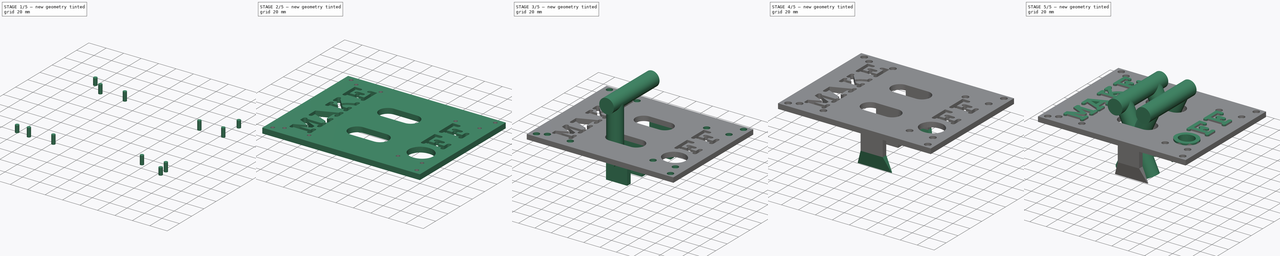
[diagram: build sequence overview — one tinted view per stage of 5, left to right]
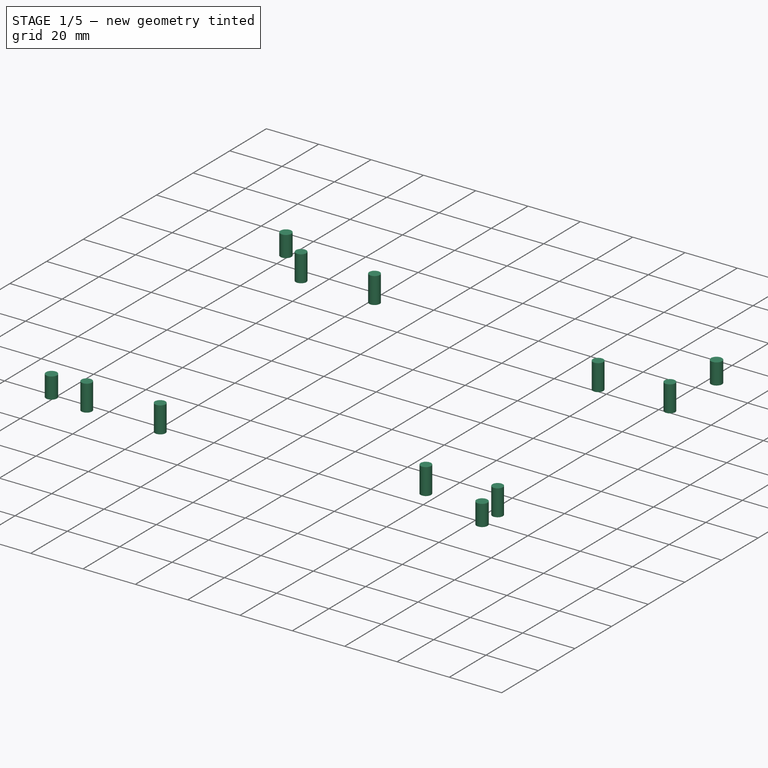
[diagram: stage 1 of 5 — iso view after this stage's code; geometry added in this stage tinted green]
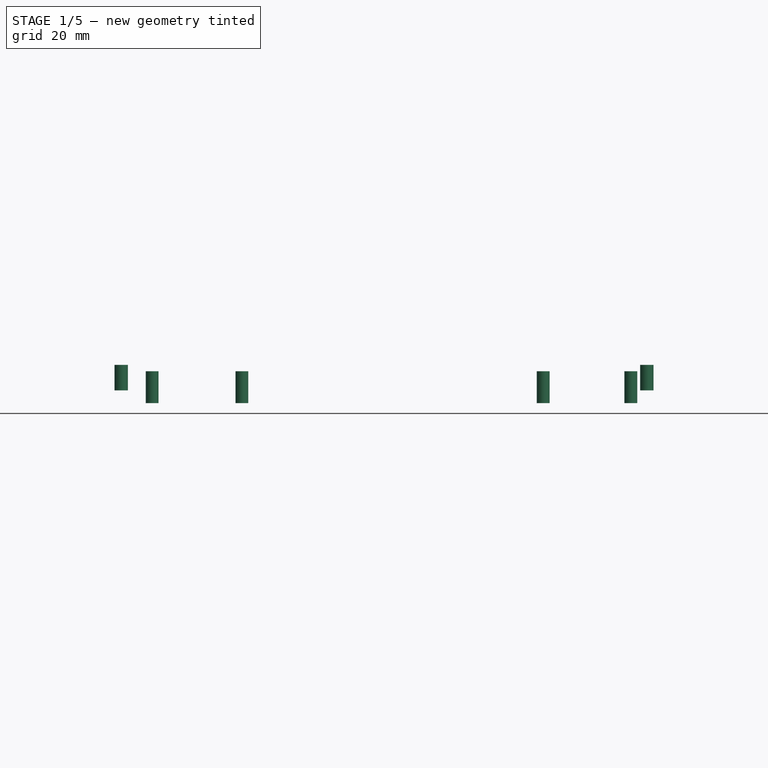
[diagram: stage 1 of 5 — front view after this stage's code; geometry added in this stage tinted green]
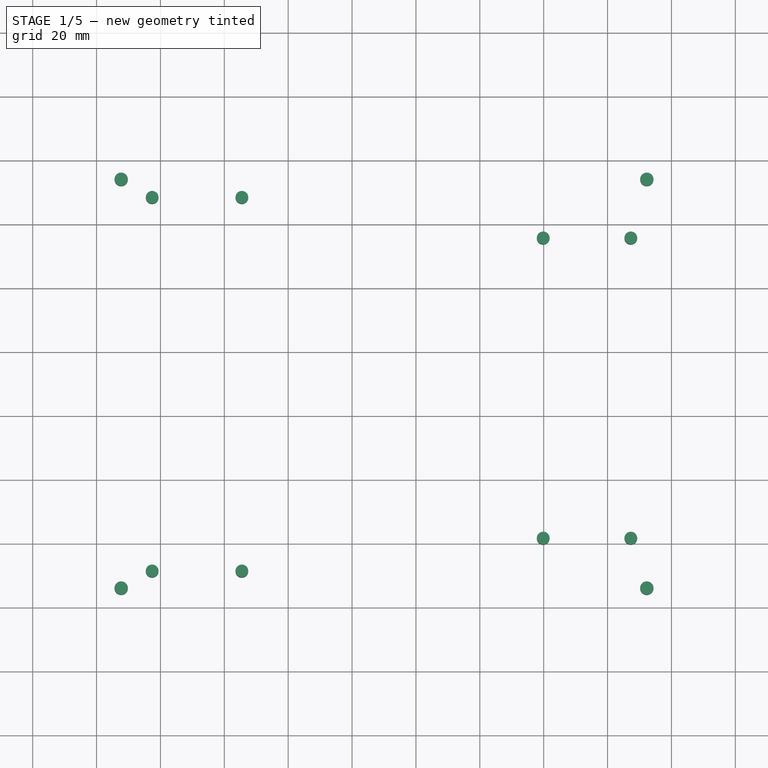
[diagram: stage 1 of 5 — top view after this stage's code; geometry added in this stage tinted green]
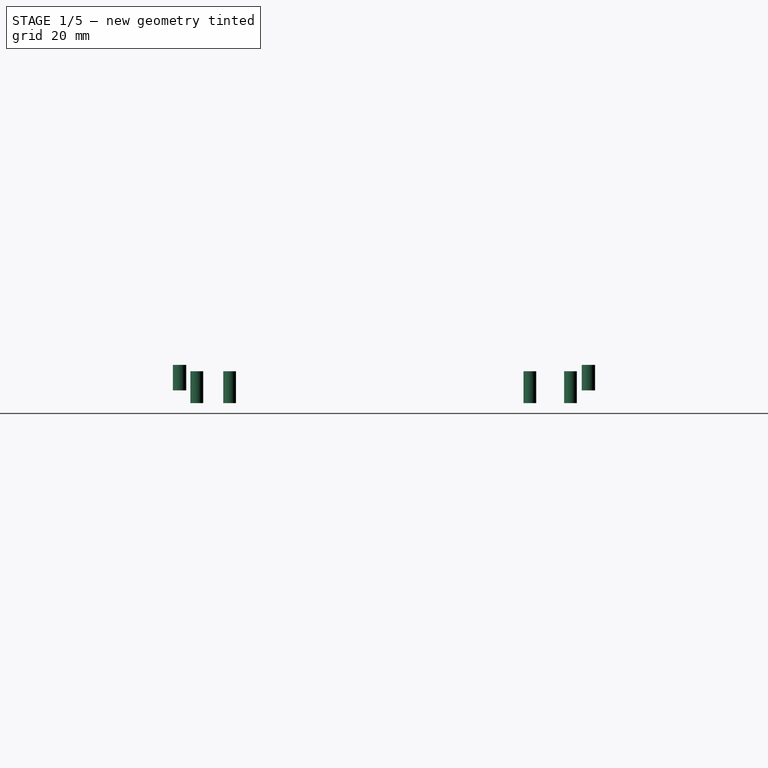
[diagram: stage 1 of 5 — right view after this stage's code; geometry added in this stage tinted green]
FCSTD DOCUMENT  (FreeCAD 0.16R4928 (Git))
Label: MakeSwitch
License: All rights reserved
LicenseURL: http://es.wikipedia.org/wiki/Todos_los_derechos_reservados
objects: Sketcher::SketchObject×10, Part::FeaturePython×8, Part::Feature×8, App::DocumentObjectGroup×6, Part::Extrusion×5, Part::Cut×5, Part::MultiFuse×5, PartDesign::Pad×3, PartDesign::Pocket×3, Part::Cylinder×3, Part::Part2DObjectPython×2, Part::Box×1, Part::Loft×1, Part::Mirroring×1, PartDesign::Chamfer×1
note: 62 computed .brp shape members not serialized (recipe doc carries the construction recipe); baked Part::Feature solids carry a one-line shape summary decoded from their .brp

FEATURE [Part::Box] Box  label="Base"
  Height = 6
  Length = 180
  Width = 140
FEATURE [Sketcher::SketchObject] Sketch
  ExternalGeometry = -> [Box]
  Placement = pos=(0,0,6) rot=(0,0,1;0rad)
  Support = -> Box [Face6]
  sketch-geometry (13):
    g0: LineSegment StartX=180 StartY=140 StartZ=0 EndX=0 EndY=140 EndZ=0
    g1: LineSegment StartX=0 StartY=140 StartZ=0 EndX=0 EndY=0 EndZ=0
    g2: LineSegment StartX=0 StartY=0 StartZ=0 EndX=180 EndY=0 EndZ=0
    g3: LineSegment StartX=180 StartY=0 StartZ=0 EndX=180 EndY=140 EndZ=0
    g4: LineSegment StartX=166.929 StartY=134 StartZ=0 EndX=13.0711 EndY=134 EndZ=0
    g5: LineSegment StartX=13.0711 StartY=134 StartZ=0 EndX=6 EndY=126.929 EndZ=0
    g6: LineSegment StartX=6 StartY=126.929 StartZ=0 EndX=6 EndY=13.0711 EndZ=0
    g7: LineSegment StartX=6 StartY=13.0711 StartZ=0 EndX=13.0711 EndY=6 EndZ=0
    g8: LineSegment StartX=13.0711 StartY=6 StartZ=0 EndX=166.929 EndY=6 EndZ=0
    g9: LineSegment StartX=166.929 StartY=6 StartZ=0 EndX=174 EndY=13.0711 EndZ=0
    g10: LineSegment StartX=174 StartY=13.0711 StartZ=0 EndX=174 EndY=126.929 EndZ=0
    g11: LineSegment StartX=174 StartY=126.929 StartZ=0 EndX=166.929 EndY=134 EndZ=0
    g12: LineSegment [constr] StartX=166.929 StartY=134 StartZ=0 EndX=166.929 EndY=6 EndZ=0
  constraints (36):
    c: Coincident(g0,g1)
    c: Coincident(g1,g2)
    c: Coincident(g2,g3)
    c: Coincident(g3,g0)
    c: Horizontal(g0)
    c: Horizontal(g2)
    c: Vertical(g1)
    c: Vertical(g3)
    c: Coincident(g0,g-6)
    c: Coincident(g1,g-1)
    c: Horizontal(g4)
    c: Coincident(g4,g5)
    c: Coincident(g5,g6)
    c: Vertical(g6)
    c: Coincident(g6,g7)
    c: Coincident(g7,g8)
    c: Horizontal(g8)
    c: Coincident(g8,g9)
    c: Coincident(g9,g10)
    c: Vertical(g10)
    c: Coincident(g10,g11)
    c: Coincident(g11,g4)
    c: Parallel(g7,g11)
    c: Parallel(g9,g5)
    c: Perpendicular(g11,g9)
    c: Coincident(g12,g4)
    c: Coincident(g12,g8)
    c: Vertical(g12)
    c: Equal(g9,g11)
    c: Equal(g11,g7)
    c: Equal(g7,g5)
    c: DistanceX(g9,g2) = 6
    c: DistanceY(g8,g2) = -6
    c: DistanceX(g5,g0) = -6
    c: DistanceY(g0,g4) = -6
    c: Distance(g11) = 10
FEATURE [PartDesign::Pad] Pad
  Length = 60
  Length2 = 100
  Sketch = -> Sketch
  Type = 0
FEATURE [App::DocumentObjectGroup] Grupo005  label="Latch"
  Group = -> [Chamfer,Fusion002]
FEATURE [Part::Cylinder] Cylinder002  label="Cilindro002"
  Angle = 360
  Height = 10
  Placement = pos=(17.412,11.393,56) rot=(0,0,1;0rad)
  Radius = 2
FEATURE [Part::Feature] Cylinder003  label="Cilindro003"
  Placement = pos=(17.412,128.393,56) rot=(0,0,1;0rad)
  shape: bbox 4 x 4 x 10 mm, 3 faces (baked)
FEATURE [Part::Feature] Cylinder004  label="Cilindro004"
  Placement = pos=(45.5,11.393,56) rot=(0,0,1;0rad)
  shape: bbox 4 x 4 x 10 mm, 3 faces (baked)
FEATURE [Part::Feature] Cylinder005  label="Cilindro005"
  Placement = pos=(45.5,128.393,56) rot=(0,0,1;0rad)
  shape: bbox 4 x 4 x 10 mm, 3 faces (baked)
FEATURE [Part::Feature] Cylinder006  label="Cilindro006"
  Placement = pos=(139.843,115.683,56) rot=(0,0,1;0rad)
  shape: bbox 4 x 4 x 10 mm, 3 faces (baked)
FEATURE [Part::Feature] Cylinder007  label="Cilindro007"
  Placement = pos=(167.278,115.683,56) rot=(0,0,1;0rad)
  shape: bbox 4 x 4 x 10 mm, 3 faces (baked)
FEATURE [Part::Feature] Cylinder008  label="Cilindro008"
  Placement = pos=(167.278,21.6825,56) rot=(0,0,1;0rad)
  shape: bbox 4 x 4 x 10 mm, 3 faces (baked)
FEATURE [Part::Feature] Cylinder009  label="Cilindro009"
  Placement = pos=(139.843,21.6825,56) rot=(0,0,1;0rad)
  shape: bbox 4 x 4 x 10 mm, 3 faces (baked)
FEATURE [Part::MultiFuse] Fusion003
  Placement = pos=(0,0,6) rot=(0,0,1;0rad)
  Shapes = -> [Cylinder002,Cylinder003,Cylinder008,Cylinder007,Cylinder006,Cylinder004,Cylinder009,Cylinder005]
FEATURE [Sketcher::SketchObject] Sketch007
  ExternalGeometry = -> [Pad]
  Placement = pos=(0,0,66) rot=(0,0,1;0rad)
  Support = -> Pad [Face1]
  sketch-geometry (10):
    g0: LineSegment [constr] StartX=7.71429 StartY=134 StartZ=0 EndX=172.286 EndY=134 EndZ=0
    g1: LineSegment [constr] StartX=172.286 StartY=134 StartZ=0 EndX=172.286 EndY=6 EndZ=0
    g2: LineSegment [constr] StartX=172.286 StartY=6 StartZ=0 EndX=7.71429 EndY=6 EndZ=0
    g3: LineSegment [constr] StartX=7.71429 StartY=6 StartZ=0 EndX=7.71429 EndY=134 EndZ=0
    g4: LineSegment [constr] StartX=180 StartY=140 StartZ=0 EndX=0 EndY=0 EndZ=0
    g5: Circle CenterX=172.286 CenterY=6 CenterZ=0 NormalX=0 NormalY=0 NormalZ=1 Radius=2.1
    g6: Circle CenterX=172.286 CenterY=134 CenterZ=0 NormalX=0 NormalY=0 NormalZ=1 Radius=2.1
    g7: Circle CenterX=7.71429 CenterY=134 CenterZ=0 NormalX=0 NormalY=0 NormalZ=1 Radius=2.1
    g8: LineSegment [constr] StartX=0 StartY=140 StartZ=0 EndX=180 EndY=0 EndZ=0
    g9: Circle CenterX=7.71429 CenterY=6 CenterZ=0 NormalX=0 NormalY=0 NormalZ=1 Radius=2.1
  constraints (24):
    c: Coincident(g0,g1)
    c: Coincident(g1,g2)
    c: Coincident(g2,g3)
    c: Coincident(g3,g0)
    c: Horizontal(g0)
    c: Horizontal(g2)
    c: Vertical(g1)
    c: Vertical(g3)
    c: Coincident(g4,g-5)
    c: Coincident(g4,g-1)
    c: PointOnObject(g2,g4)
    c: PointOnObject(g0,g4)
    c: Coincident(g5,g1)
    c: Coincident(g6,g0)
    c: Coincident(g7,g0)
    c: Coincident(g8,g-6)
    c: Coincident(g8,g-4)
    c: PointOnObject(g1,g8)
    c: Coincident(g9,g2)
    c: Radius(g6) = 2.1
    c: Equal(g6,g5)
    c: Equal(g6,g7)
    c: Equal(g6,g9)
    c: PointOnObject(g-8,g2)
FEATURE [PartDesign::Pocket] Pocket001
  Length = 35
  Sketch = -> Sketch007
  Type = 0
FEATURE [Sketcher::SketchObject] Sketch008
  ExternalGeometry = -> [Pocket001]
  Placement = pos=(0,0,66) rot=(0,0,1;0rad)
  Support = -> Pocket001 [Face1]
  sketch-geometry (4):
    g0: Circle CenterX=7.71429 CenterY=134 CenterZ=0 NormalX=0 NormalY=0 NormalZ=1 Radius=2.1
    g1: Circle CenterX=172.286 CenterY=134 CenterZ=0 NormalX=0 NormalY=0 NormalZ=1 Radius=2.1
    g2: Circle CenterX=172.286 CenterY=6 CenterZ=0 NormalX=0 NormalY=0 NormalZ=1 Radius=2.1
    g3: Circle CenterX=7.71429 CenterY=6 CenterZ=0 NormalX=0 NormalY=0 NormalZ=1 Radius=2.1
  constraints (8):
    c: Coincident(g0,g-3)
    c: Coincident(g1,g-4)
    c: Coincident(g2,g-5)
    c: Coincident(g3,g-6)
    c: Equal(g3,g0)
    c: Equal(g0,g1)
    c: Equal(g1,g2)
    c: Equal(g2,g-5)
FEATURE [App::DocumentObjectGroup] Grupo  label="Caja"
  Group = -> [Box,Pad,Grupo005,Pocket001,Sketch008]
FEATURE [Part::Extrusion] Extrude_Sketch008  label="Sketch008_Extrude"
  Base = -> Sketch008
  Dir = (0,0,8)
  Solid = true
FEATURE [Part::MultiFuse] Fusion004
  Shapes = -> [Fusion003,Extrude_Sketch008]
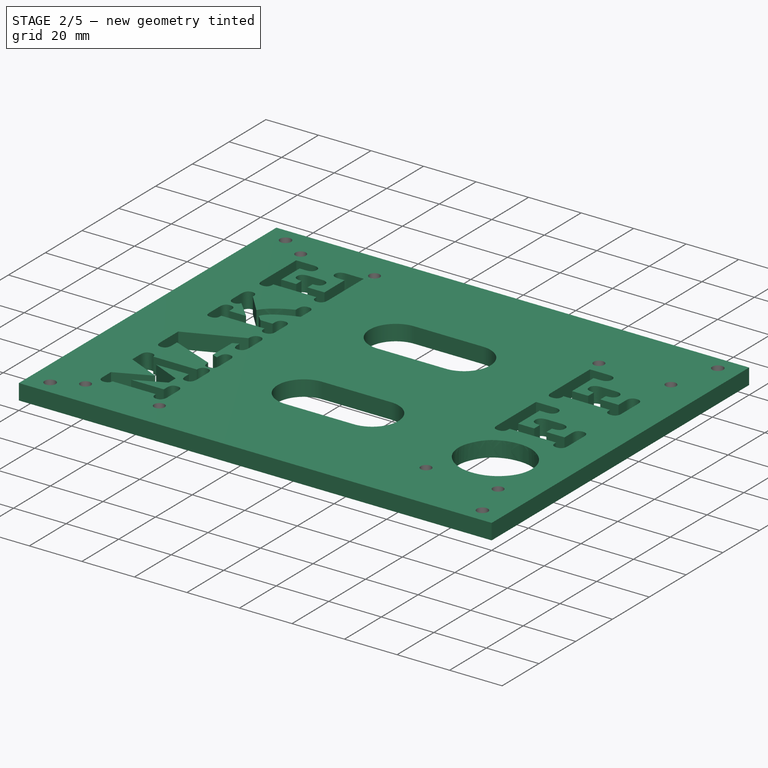
[diagram: stage 2 of 5 — iso view after this stage's code; geometry added in this stage tinted green]
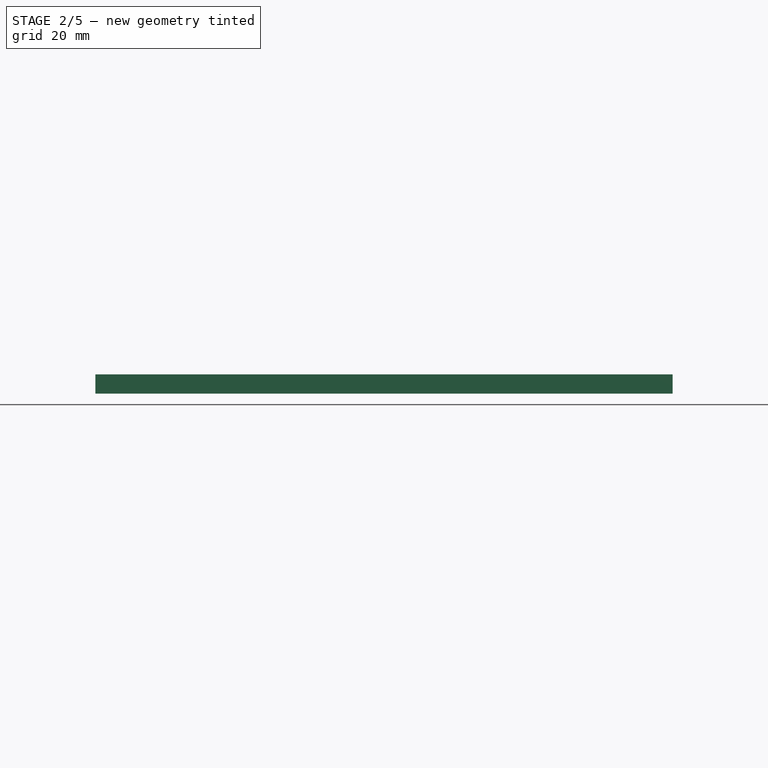
[diagram: stage 2 of 5 — front view after this stage's code; geometry added in this stage tinted green]
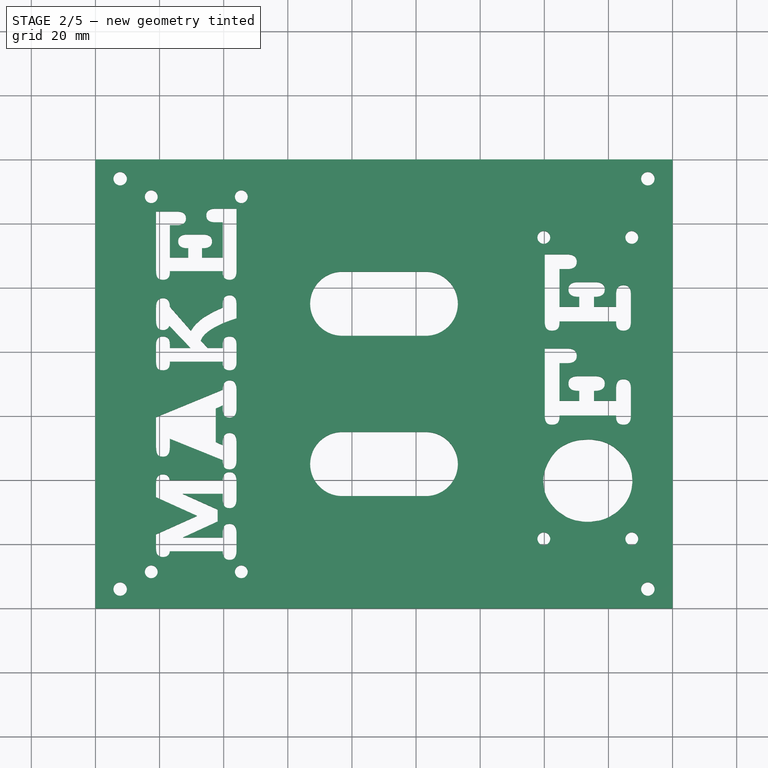
[diagram: stage 2 of 5 — top view after this stage's code; geometry added in this stage tinted green]
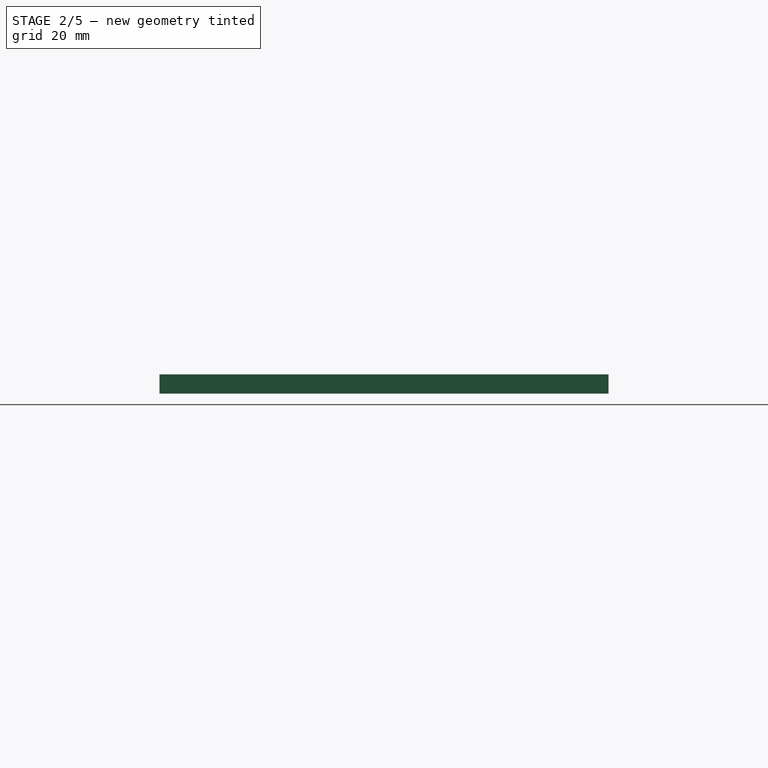
[diagram: stage 2 of 5 — right view after this stage's code; geometry added in this stage tinted green]
FEATURE [Part::FeaturePython] Clone  label="Clone of Base"  # Draft clone (typed FeaturePython)
  Objects = -> [Box]
  Placement = pos=(0,0,66) rot=(0,0,1;0rad)
  Scale = (1,1,1)
FEATURE [Part::Part2DObjectPython] ShapeString  # Draft 2D object (typed FeaturePython)
  FontFile = <path>
  Placement = pos=(44,16,72) rot=(0,0,1;1.5708rad)
  Size = 14
  String = MAKE
  Support = -> Clone
  Tracking = 160
FEATURE [Part::Part2DObjectPython] ShapeString001  label="String"  # Draft 2D object (typed FeaturePython)
  FontFile = <path>
  Placement = pos=(167,26,72) rot=(0,0,1;1.5708rad)
  Size = 15
  String = OFF
  Support = -> Clone
  Tracking = 100
FEATURE [Part::Extrusion] Extrude_ShapeString  label="Make"
  Base = -> ShapeString
  Dir = (0,0,-8)
  Solid = true
FEATURE [Part::Extrusion] Extrude_ShapeString001  label="Off"
  Base = -> ShapeString001
  Dir = (0,0,-8)
  Solid = true
FEATURE [Part::Cut] Cut
  Base = -> Clone
  Tool = -> Extrude_ShapeString
FEATURE [Part::Cut] Cut001
  Base = -> Cut
  Tool = -> Extrude_ShapeString001
FEATURE [App::DocumentObjectGroup] Grupo003  label="off"
  Group = -> [Pad001,Clone002]
FEATURE [Sketcher::SketchObject] Sketch003
  ExternalGeometry = -> [Cut001]
  Placement = pos=(0,0,72) rot=(0,0,1;0rad)
  Support = -> Cut001 [Face3]
  sketch-geometry (16):
    g0: ArcOfCircle CenterX=76.9683 CenterY=95 CenterZ=0 NormalX=0 NormalY=0 NormalZ=1 Radius=10 StartAngle=1.5708 EndAngle=4.71239
    g1: ArcOfCircle CenterX=103.032 CenterY=95 CenterZ=0 NormalX=0 NormalY=0 NormalZ=1 Radius=10 StartAngle=4.71239 EndAngle=7.85398
    g2: LineSegment StartX=76.9683 StartY=85 StartZ=0 EndX=103.032 EndY=85 EndZ=0
    g3: LineSegment StartX=76.9683 StartY=105 StartZ=0 EndX=103.032 EndY=105 EndZ=0
    g4: ArcOfCircle CenterX=76.9683 CenterY=45 CenterZ=0 NormalX=0 NormalY=0 NormalZ=1 Radius=10 StartAngle=1.5708 EndAngle=4.71239
    g5: ArcOfCircle CenterX=103.032 CenterY=45 CenterZ=0 NormalX=0 NormalY=0 NormalZ=1 Radius=10 StartAngle=4.71239 EndAngle=7.85398
    g6: LineSegment StartX=76.9683 StartY=35 StartZ=0 EndX=103.032 EndY=35 EndZ=0
    g7: LineSegment StartX=76.9683 StartY=55 StartZ=0 EndX=103.032 EndY=55 EndZ=0
    g8: LineSegment [constr] StartX=76.9683 StartY=85 StartZ=0 EndX=76.9683 EndY=55 EndZ=0
    g9: LineSegment [constr] StartX=103.032 StartY=85 StartZ=0 EndX=103.032 EndY=55 EndZ=0
    g10: LineSegment [constr] StartX=76.9683 StartY=105 StartZ=0 EndX=76.9683 EndY=85 EndZ=0
    g11: LineSegment [constr] StartX=76.9683 StartY=55 StartZ=0 EndX=76.9683 EndY=35 EndZ=0
    g12: LineSegment [constr] StartX=103.032 StartY=105 StartZ=0 EndX=103.032 EndY=140 EndZ=0
    g13: LineSegment [constr] StartX=103.032 StartY=35 StartZ=0 EndX=103.032 EndY=0 EndZ=0
    g14: LineSegment [constr] StartX=76.9683 StartY=95 StartZ=0 EndX=0 EndY=95 EndZ=0
    g15: LineSegment [constr] StartX=103.032 StartY=95 StartZ=0 EndX=180 EndY=95 EndZ=0
  constraints (39):
    c: Tangent(g0,g3) = 1.5708
    c: Tangent(g0,g2) = -1.5708
    c: Tangent(g2,g1) = -1.5708
    c: Tangent(g3,g1) = 1.5708
    c: Horizontal(g2)
    c: Equal(g0,g1)
    c: Tangent(g4,g7) = 1.5708
    c: Tangent(g4,g6) = -1.5708
    c: Tangent(g6,g5) = -1.5708
    c: Tangent(g7,g5) = 1.5708
    c: Horizontal(g6)
    c: Equal(g4,g5)
    c: Coincident(g8,g0)
    c: Coincident(g8,g4)
    c: Coincident(g9,g1)
    c: Coincident(g9,g5)
    c: Vertical(g9)
    c: Vertical(g8)
    c: Coincident(g10,g0)
    c: Coincident(g10,g0)
    c: Coincident(g11,g4)
    c: Coincident(g11,g4)
    c: Equal(g10,g11)
    c: Coincident(g12,g1)
    c: PointOnObject(g12,g-4)
    c: Vertical(g12)
    c: Coincident(g13,g5)
    c: PointOnObject(g13,g-3)
    c: Vertical(g13)
    c: Equal(g12,g13)
    c: Radius(g1) = 10
    c: Coincident(g14,g0)
    c: PointOnObject(g14,g-5)
    c: Horizontal(g14)
    c: Coincident(g15,g1)
    c: PointOnObject(g15,g-6)
    c: Horizontal(g15)
    c: Equal(g14,g15)
    c: Distance(g12) = 35
FEATURE [PartDesign::Pocket] Pocket
  Length = 10
  Sketch = -> Sketch003
  Type = 0
FEATURE [Part::Cut] Cut004
  Base = -> Pocket
  Tool = -> Fusion004
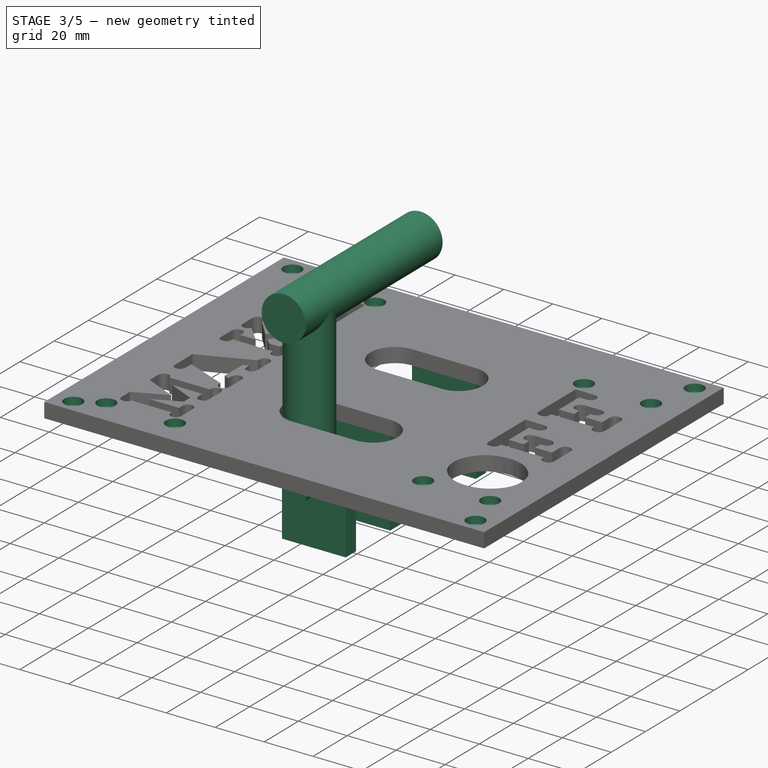
[diagram: stage 3 of 5 — iso view after this stage's code; geometry added in this stage tinted green]
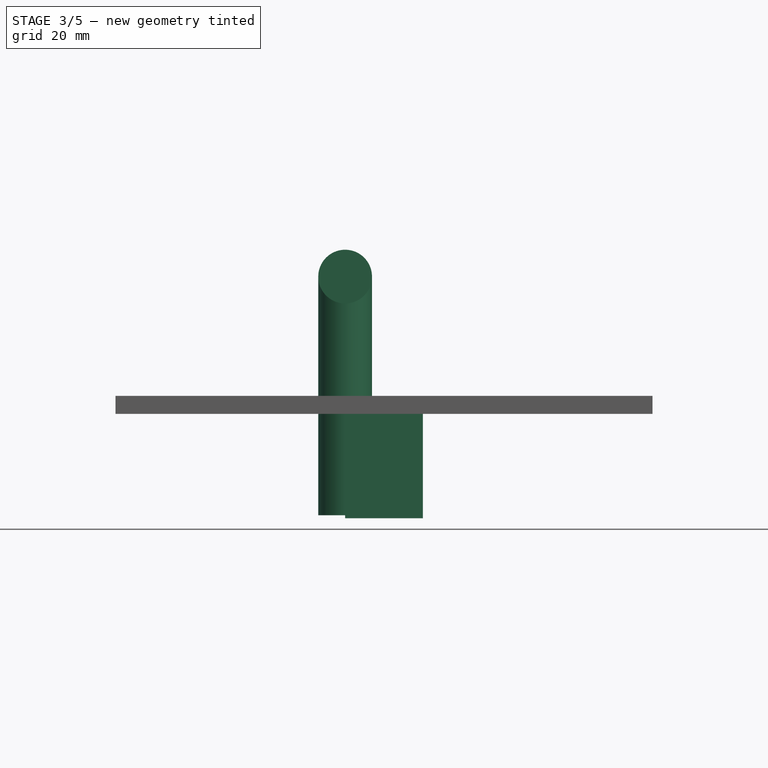
[diagram: stage 3 of 5 — front view after this stage's code; geometry added in this stage tinted green]
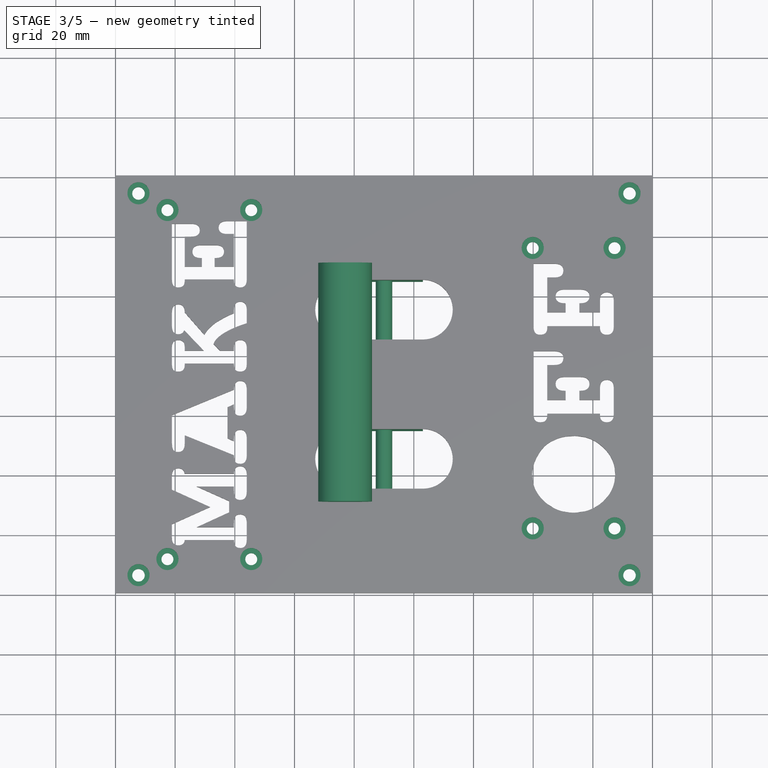
[diagram: stage 3 of 5 — top view after this stage's code; geometry added in this stage tinted green]
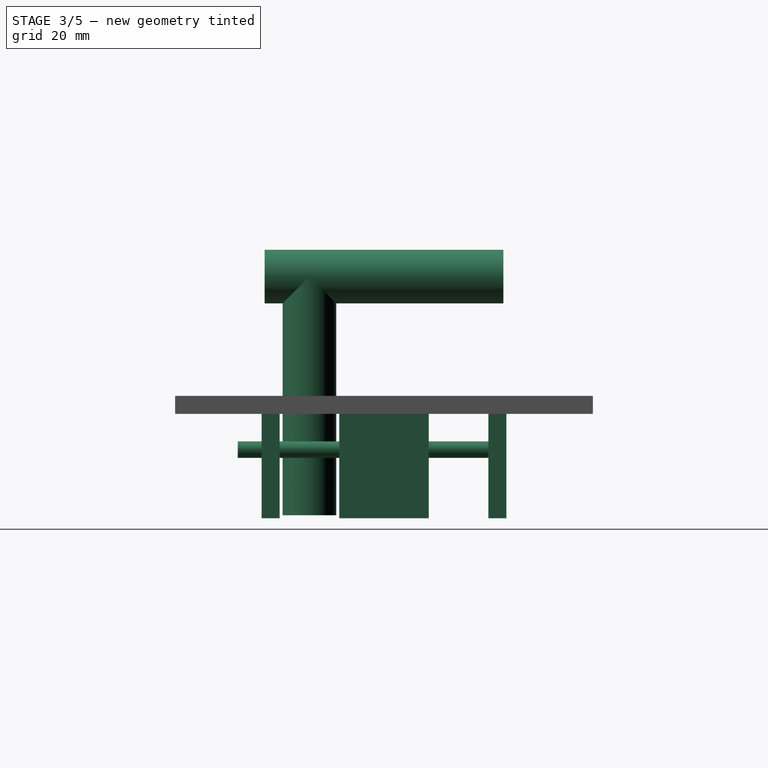
[diagram: stage 3 of 5 — right view after this stage's code; geometry added in this stage tinted green]
FEATURE [Part::Cylinder] Cylinder  label="Cilindro"
  Angle = 360
  Height = 80
  Placement = pos=(76.9683,45,32) rot=(0,0,1;0rad)
  Radius = 9
FEATURE [Part::Cylinder] Cylinder001  label="Cilindro001"
  Angle = 360
  Height = 80
  Placement = pos=(76.9683,110,112) rot=(1,0,0;1.5708rad)
  Radius = 9
FEATURE [Sketcher::SketchObject] Sketch004
  ExternalGeometry = -> [Pocket]
  Placement = pos=(0,0,66) rot=(1,0,0;3.14159rad)
  Support = -> Pocket [Face5]
  sketch-geometry (16):
    g0: LineSegment [constr] StartX=103.032 StartY=-29 StartZ=0 EndX=76.9683 EndY=-29 EndZ=0
    g1: LineSegment [constr] StartX=76.9683 StartY=-29 StartZ=0 EndX=76.9683 EndY=-111 EndZ=0
    g2: LineSegment [constr] StartX=76.9683 StartY=-111 StartZ=0 EndX=103.032 EndY=-111 EndZ=0
    g3: LineSegment [constr] StartX=103.032 StartY=-111 StartZ=0 EndX=103.032 EndY=-29 EndZ=0
    g4: LineSegment StartX=76.9683 StartY=-111 StartZ=0 EndX=103.032 EndY=-111 EndZ=0
    g5: LineSegment StartX=103.032 StartY=-111 StartZ=0 EndX=103.032 EndY=-105 EndZ=0
    g6: LineSegment StartX=103.032 StartY=-105 StartZ=0 EndX=76.9683 EndY=-105 EndZ=0
    g7: LineSegment StartX=76.9683 StartY=-105 StartZ=0 EndX=76.9683 EndY=-111 EndZ=0
    g8: LineSegment StartX=76.9683 StartY=-85 StartZ=0 EndX=103.032 EndY=-85 EndZ=0
    g9: LineSegment StartX=103.032 StartY=-85 StartZ=0 EndX=103.032 EndY=-55 EndZ=0
    g10: LineSegment StartX=103.032 StartY=-55 StartZ=0 EndX=76.9683 EndY=-55 EndZ=0
    g11: LineSegment StartX=76.9683 StartY=-55 StartZ=0 EndX=76.9683 EndY=-85 EndZ=0
    g12: LineSegment StartX=76.9683 StartY=-35 StartZ=0 EndX=103.032 EndY=-35 EndZ=0
    g13: LineSegment StartX=103.032 StartY=-35 StartZ=0 EndX=103.032 EndY=-29 EndZ=0
    g14: LineSegment StartX=103.032 StartY=-29 StartZ=0 EndX=76.9683 EndY=-29 EndZ=0
    g15: LineSegment StartX=76.9683 StartY=-29 StartZ=0 EndX=76.9683 EndY=-35 EndZ=0
  constraints (42):
    c: Coincident(g0,g1)
    c: Coincident(g1,g2)
    c: Coincident(g2,g3)
    c: Coincident(g3,g0)
    c: Horizontal(g0)
    c: Horizontal(g2)
    c: Vertical(g1)
    c: Vertical(g3)
    c: PointOnObject(g-3,g1)
    c: PointOnObject(g-4,g3)
    c: Distance(g-6,g0) = 6
    c: Distance(g-5,g1) = 6
    c: Coincident(g4,g5)
    c: Coincident(g5,g6)
    c: Coincident(g6,g7)
    c: Coincident(g7,g4)
    c: Horizontal(g4)
    c: Horizontal(g6)
    c: Vertical(g5)
    c: Vertical(g7)
    c: Coincident(g4,g1)
    c: Coincident(g5,g-5)
    c: Coincident(g8,g9)
    c: Coincident(g9,g10)
    c: Coincident(g10,g11)
    c: Coincident(g11,g8)
    c: Horizontal(g8)
    c: Horizontal(g10)
    c: Vertical(g9)
    c: Vertical(g11)
    c: Coincident(g8,g-3)
    c: Coincident(g9,g-4)
    c: Coincident(g12,g13)
    c: Coincident(g13,g14)
    c: Coincident(g14,g15)
    c: Coincident(g15,g12)
    c: Horizontal(g12)
    c: Horizontal(g14)
    c: Vertical(g13)
    c: Vertical(g15)
    c: Coincident(g12,g-6)
    c: Coincident(g13,g0)
FEATURE [Part::Extrusion] Extrude_Sketch004  label="Sketch004_Extrude"
  Base = -> Sketch004
  Dir = (0,0,-35)
  Solid = true
FEATURE [Sketcher::SketchObject] Sketch005
  ExternalGeometry = -> [Extrude_Sketch004]
  Placement = pos=(0,111,0) rot=(0,0.707107,0.707107;3.14159rad)
  Support = -> Extrude_Sketch004 [Face13]
  sketch-geometry (3):
    g0: LineSegment [constr] StartX=-103.032 StartY=54 StartZ=0 EndX=-90 EndY=54 EndZ=0
    g1: LineSegment [constr] StartX=-90 StartY=54 StartZ=0 EndX=-76.9683 EndY=54 EndZ=0
    g2: Circle CenterX=-90 CenterY=54 CenterZ=0 NormalX=0 NormalY=0 NormalZ=1 Radius=2.75
  constraints (9):
    c: PointOnObject(g0,g-3)
    c: Horizontal(g0)
    c: Coincident(g0,g1)
    c: PointOnObject(g1,g-4)
    c: Horizontal(g1)
    c: Equal(g0,g1)
    c: Distance(g-4,g1) = 12
    c: Coincident(g2,g0)
    c: Radius(g2) = 2.75
FEATURE [Part::Extrusion] Extrude_Sketch005001  label="Sketch005_Extrude001"
  Base = -> Sketch005
  Dir = (0,-90,0)
  Solid = true
FEATURE [Part::Cut] Cut002
  Base = -> Extrude_Sketch004
  Tool = -> Extrude_Sketch005001
FEATURE [Part::FeaturePython] Clone004  label="Clone of Sketch005_Extrude001"  # Draft clone (typed FeaturePython)
  Objects = -> [Extrude_Sketch005001]
  Scale = (1,1,1)
FEATURE [Sketcher::SketchObject] Sketch009
  ExternalGeometry = -> [Cut004]
  Placement = pos=(0,0,72) rot=(0,0,1;0rad)
  Support = -> Cut004 [Face3]
  sketch-geometry (12):
    g0: Circle CenterX=7.71429 CenterY=6 CenterZ=0 NormalX=0 NormalY=0 NormalZ=1 Radius=3.7
    g1: Circle CenterX=7.71429 CenterY=134 CenterZ=0 NormalX=0 NormalY=0 NormalZ=1 Radius=3.7
    g2: Circle CenterX=17.412 CenterY=128.393 CenterZ=0 NormalX=0 NormalY=0 NormalZ=1 Radius=3.7
    g3: Circle CenterX=17.412 CenterY=11.393 CenterZ=0 NormalX=0 NormalY=0 NormalZ=1 Radius=3.7
    g4: Circle CenterX=45.5 CenterY=11.393 CenterZ=0 NormalX=0 NormalY=0 NormalZ=1 Radius=3.7
    g5: Circle CenterX=45.5 CenterY=128.393 CenterZ=0 NormalX=0 NormalY=0 NormalZ=1 Radius=3.7
    g6: Circle CenterX=139.843 CenterY=115.683 CenterZ=0 NormalX=0 NormalY=0 NormalZ=1 Radius=3.7
    g7: Circle CenterX=139.843 CenterY=21.6825 CenterZ=0 NormalX=0 NormalY=0 NormalZ=1 Radius=3.7
    g8: Circle CenterX=167.278 CenterY=21.6825 CenterZ=0 NormalX=0 NormalY=0 NormalZ=1 Radius=3.7
    g9: Circle CenterX=167.278 CenterY=115.683 CenterZ=0 NormalX=0 NormalY=0 NormalZ=1 Radius=3.7
    g10: Circle CenterX=172.286 CenterY=134 CenterZ=0 NormalX=0 NormalY=0 NormalZ=1 Radius=3.7
    g11: Circle CenterX=172.286 CenterY=6 CenterZ=0 NormalX=0 NormalY=0 NormalZ=1 Radius=3.7
  constraints (21):
    c: Coincident(g0,g-3)
    c: Coincident(g1,g-15)
    c: Coincident(g2,g-13)
    c: Coincident(g3,g-4)
    c: Coincident(g4,g-5)
    c: Coincident(g5,g-14)
    c: Coincident(g6,g-11)
    c: Coincident(g7,g-6)
    c: Coincident(g8,g-7)
    c: Coincident(g9,g-9)
    c: Coincident(g10,g-12)
    c: Coincident(g11,g-8)
    c: Radius(g0) = 3.7
    c: Equal(g0,g1)
    c: Equal(g0,g2)
    c: Equal(g0,g5)
    c: Equal(g0,g4)
    c: Equal(g0,g3)
    c: Equal(g0,g7)
    c: Equal(g0,g6)
    c: Equal(g0, g8-g11) x4
FEATURE [PartDesign::Pocket] Pocket002
  Length = 3
  Sketch = -> Sketch009
  Type = 0
FEATURE [App::DocumentObjectGroup] Grupo001  label="Tapa"
  Group = -> [ShapeString,ShapeString001,Cut001,Grupo002,Grupo003,Sketch004,Cut004,Pocket002]
FEATURE [Part::Feature] Compound003  label="Interruptor003"
  Placement = pos=(162,142,23.5) rot=(0.57735,-0.57735,-0.57735;2.0944rad)
  shape: bbox 21 x 27.8 x 15 mm, 17 faces, 2 solids (baked)
note: 2 file-system paths scrubbed to <path> (originals preserved in the JSON sidecar)
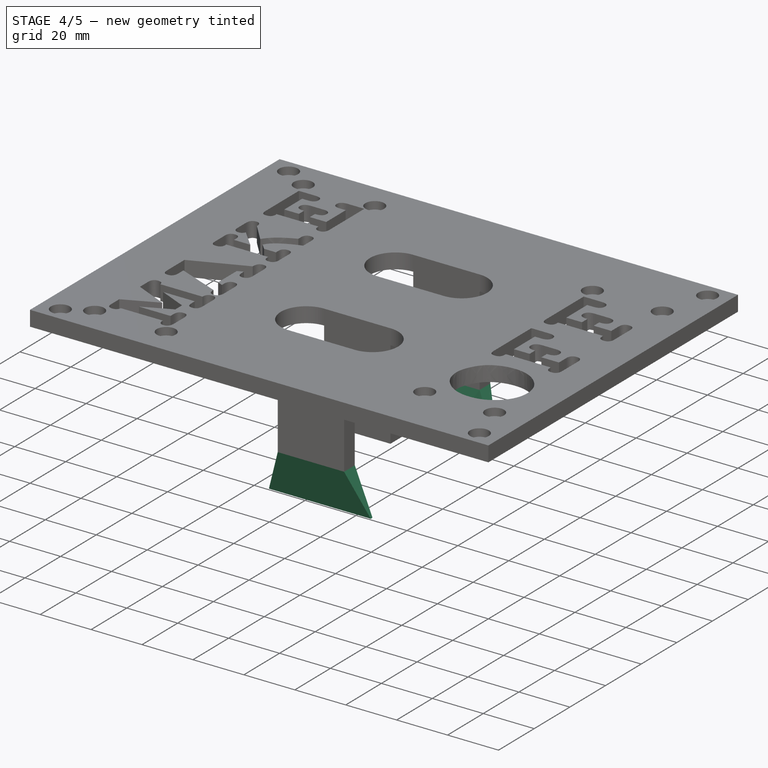
[diagram: stage 4 of 5 — iso view after this stage's code; geometry added in this stage tinted green]
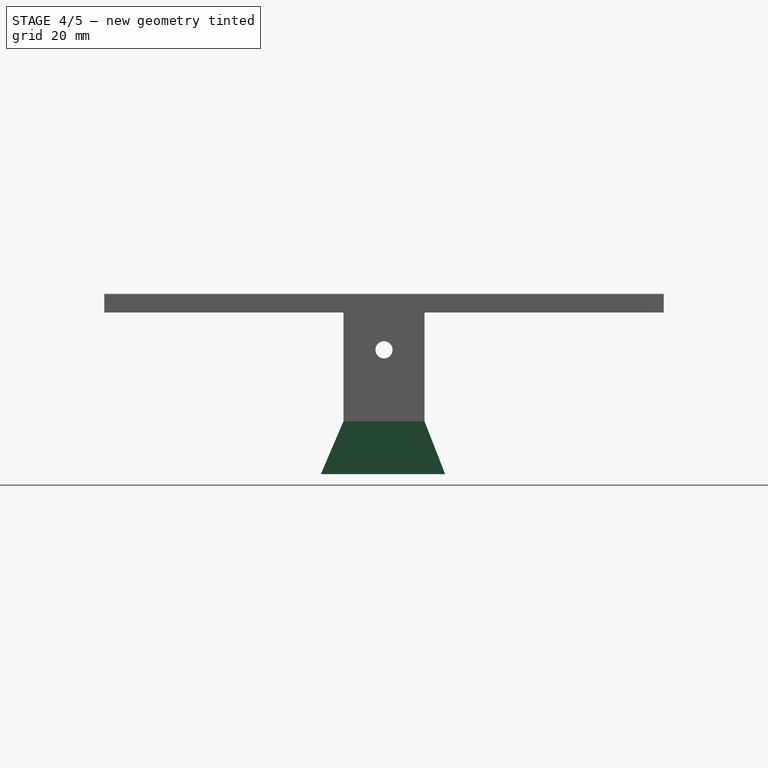
[diagram: stage 4 of 5 — front view after this stage's code; geometry added in this stage tinted green]
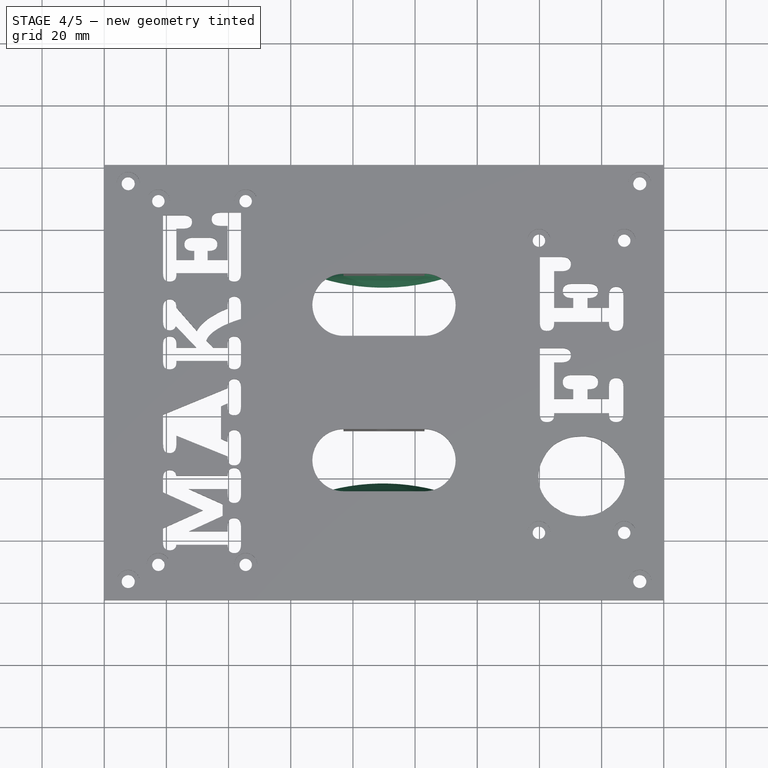
[diagram: stage 4 of 5 — top view after this stage's code; geometry added in this stage tinted green]
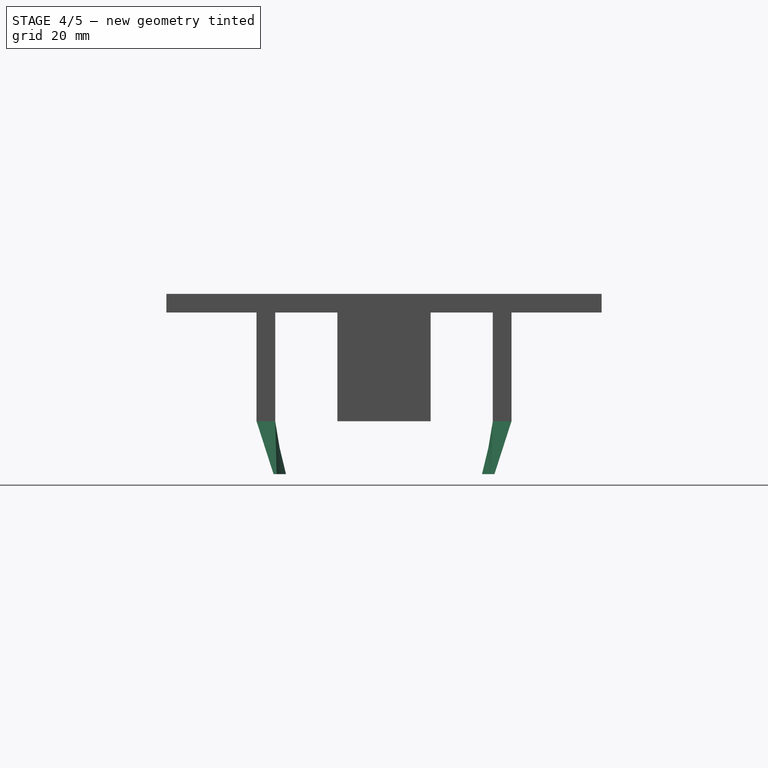
[diagram: stage 4 of 5 — right view after this stage's code; geometry added in this stage tinted green]
FEATURE [Part::FeaturePython] Clone003  label="Clone of Cilindro"  # Draft clone (typed FeaturePython)
  Objects = -> [Cylinder]
  Placement = pos=(76.9683,95,32) rot=(0,0,1;0rad)
  Scale = (1,1,1)
FEATURE [Part::MultiFuse] Fusion
  Placement = pos=(13.0317,0,-18) rot=(0,0,1;0rad)
  Shapes = -> [Cylinder001,Clone003,Cylinder]
FEATURE [Part::Cut] Cut003
  Base = -> Fusion
  Tool = -> Clone004
FEATURE [Sketcher::SketchObject] Sketch006
  Placement = pos=(0,0,14) rot=(1,0,0;3.14159rad)
  Support = -> Cut003 [Face1]
  sketch-geometry (8):
    g0: ArcOfCircle CenterX=89.6738 CenterY=28.9623 CenterZ=0 NormalX=0 NormalY=0 NormalZ=1 Radius=67.4596 StartAngle=4.41157 EndAngle=5.01321
    g1: LineSegment [constr] StartX=69.6854 StartY=-35.4679 StartZ=0 EndX=109.662 EndY=-35.4679 EndZ=0
    g2: LineSegment [constr] StartX=69.6854 StartY=-35.4679 StartZ=0 EndX=69.6854 EndY=-105.27 EndZ=0
    g3: LineSegment [constr] StartX=69.6854 StartY=-105.27 StartZ=0 EndX=109.662 EndY=-105.27 EndZ=0
    g4: LineSegment [constr] StartX=109.662 StartY=-105.27 StartZ=0 EndX=109.662 EndY=-35.4679 EndZ=0
    g5: LineSegment StartX=109.662 StartY=-35.4679 StartZ=0 EndX=109.662 EndY=-34.4679 EndZ=0
    g6: LineSegment StartX=109.662 StartY=-34.4679 StartZ=0 EndX=69.6854 EndY=-34.4679 EndZ=0
    g7: LineSegment StartX=69.6854 StartY=-34.4679 StartZ=0 EndX=69.6854 EndY=-35.4679 EndZ=0
  constraints (18):
    c: Coincident(g1,g0)
    c: Coincident(g1,g0)
    c: Horizontal(g1)
    c: Coincident(g0,g2)
    c: Coincident(g2,g3)
    c: Horizontal(g3)
    c: Coincident(g3,g4)
    c: Coincident(g4,g0)
    c: Vertical(g4)
    c: Vertical(g2)
    c: Coincident(g0,g5)
    c: Vertical(g5)
    c: Coincident(g5,g6)
    c: Horizontal(g6)
    c: Coincident(g6,g7)
    c: Coincident(g7,g0)
    c: Vertical(g7)
    c: Distance(g5) = 1
FEATURE [App::DocumentObjectGroup] Grupo004  label="Accionador"
  Group = -> [Cut003,Sketch006,Clone005,Clone006]
FEATURE [Part::FeaturePython] Facebinder  # WARN: FeaturePython — macro-defined, semantics opaque (R4)
  Faces = -> [Cut002]
  Placement = pos=(0,0,-35) rot=(0,0,1;0rad)
FEATURE [Part::Loft] Loft
  Closed = false
  Ruled = false
  Sections = -> [Facebinder,Sketch006]
  Solid = true
FEATURE [Part::Mirroring] Part__Mirroring  label="Loft (Mirror #1)"
  Base = (0,0,0)
  Normal = (0,1,0)
  Placement = pos=(0,140,0) rot=(0,0,1;0rad)
  Source = -> Loft
FEATURE [Part::MultiFuse] Fusion001
  Shapes = -> [Loft,Part__Mirroring]
FEATURE [Part::MultiFuse] Fusion002
  Shapes = -> [Cut002,Fusion001]
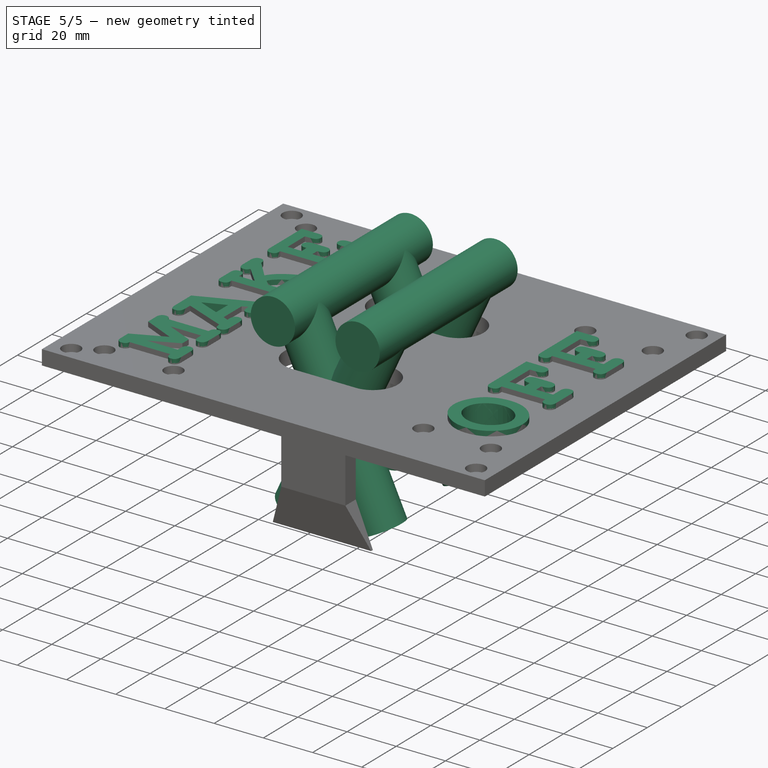
[diagram: stage 5 of 5 — iso view after this stage's code; geometry added in this stage tinted green]
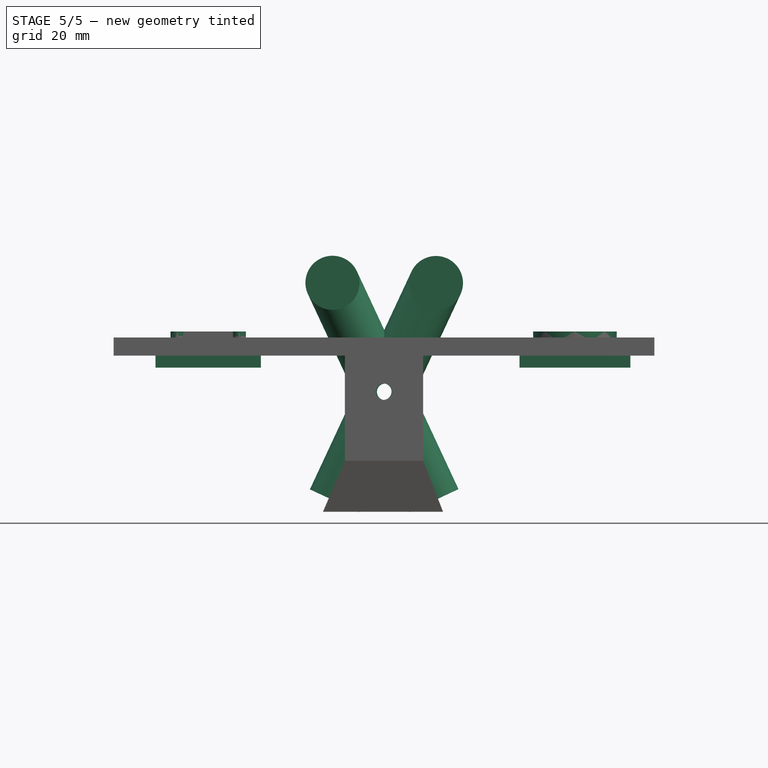
[diagram: stage 5 of 5 — front view after this stage's code; geometry added in this stage tinted green]
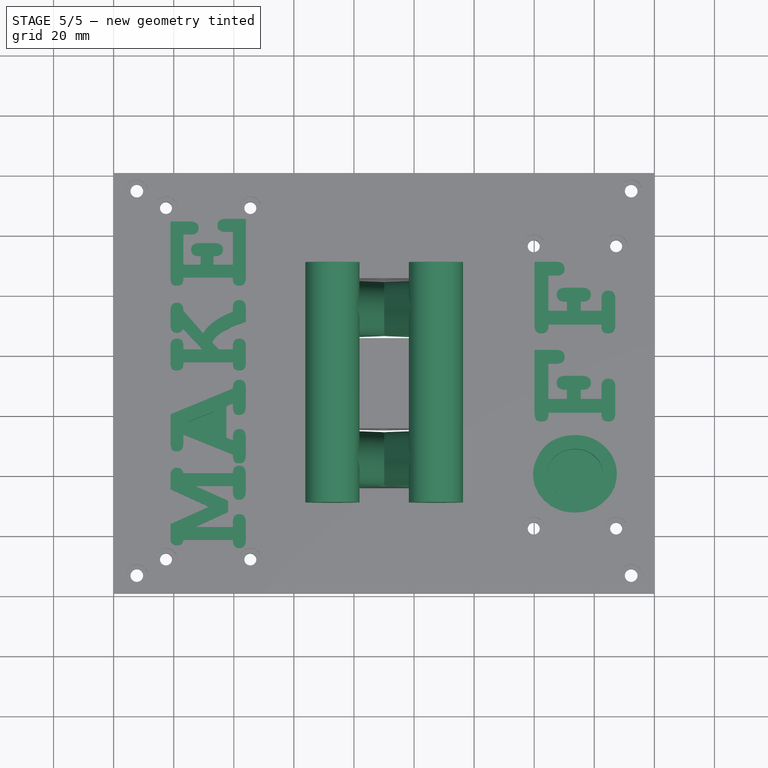
[diagram: stage 5 of 5 — top view after this stage's code; geometry added in this stage tinted green]
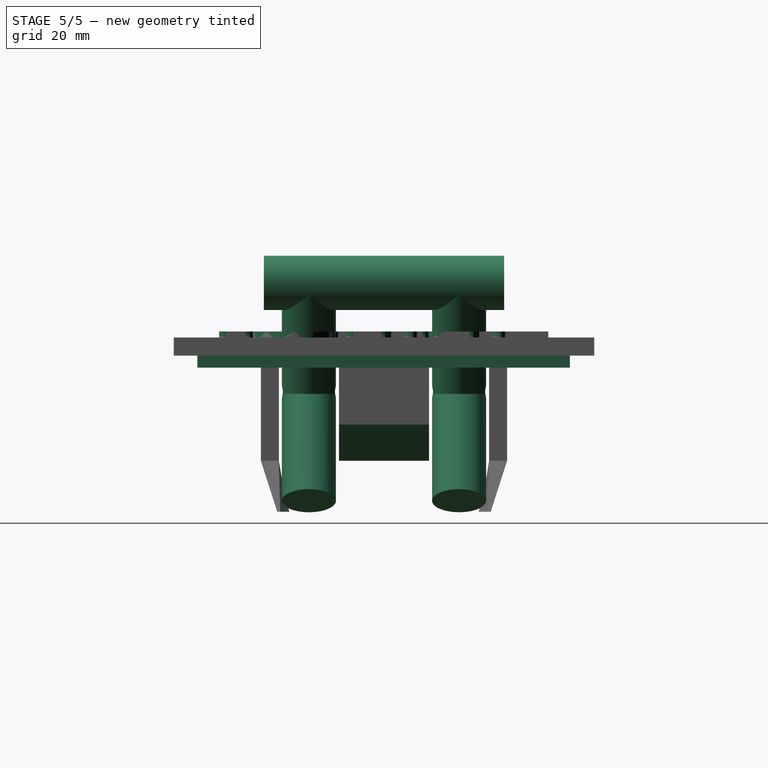
[diagram: stage 5 of 5 — right view after this stage's code; geometry added in this stage tinted green]
FEATURE [Sketcher::SketchObject] Sketch001
  ExternalGeometry = -> [Extrude_ShapeString001]
  Placement = pos=(0,0,64) rot=(1,0,0;3.14159rad)
  Support = -> Extrude_ShapeString001 [Face21]
  sketch-geometry (18):
    g0: LineSegment StartX=172 StartY=-16.96 StartZ=0 EndX=135.12 EndY=-16.96 EndZ=0
    g1: LineSegment StartX=135.12 StartY=-16.96 StartZ=0 EndX=135.12 EndY=-120.405 EndZ=0
    g2: LineSegment StartX=135.12 StartY=-120.405 StartZ=0 EndX=172 EndY=-120.405 EndZ=0
    g3: LineSegment StartX=172 StartY=-120.405 StartZ=0 EndX=172 EndY=-16.96 EndZ=0
    g4: LineSegment [constr] StartX=153.53 StartY=-26.96 StartZ=0 EndX=153.53 EndY=-16.96 EndZ=0
    g5: LineSegment [constr] StartX=147.08 StartY=-110.405 StartZ=0 EndX=147.08 EndY=-120.405 EndZ=0
    g6: LineSegment [constr] StartX=167 StartY=-59.96 StartZ=0 EndX=172 EndY=-59.96 EndZ=0
    g7: LineSegment [constr] StartX=140.12 StartY=-60.185 StartZ=0 EndX=135.12 EndY=-60.185 EndZ=0
    g8: LineSegment [constr] StartX=139.842 StartY=-115.683 StartZ=0 EndX=167.278 EndY=-115.683 EndZ=0
    g9: LineSegment [constr] StartX=167.278 StartY=-115.683 StartZ=0 EndX=167.278 EndY=-21.6825 EndZ=0
    g10: LineSegment [constr] StartX=167.278 StartY=-21.6825 StartZ=0 EndX=139.842 EndY=-21.6825 EndZ=0
    g11: LineSegment [constr] StartX=139.842 StartY=-21.6825 StartZ=0 EndX=139.842 EndY=-115.683 EndZ=0
    g12: LineSegment [constr] StartX=135.12 StartY=-16.96 StartZ=0 EndX=139.842 EndY=-21.6825 EndZ=0
    g13: LineSegment [constr] StartX=167.278 StartY=-115.683 StartZ=0 EndX=172 EndY=-120.405 EndZ=0
    g14: Circle CenterX=139.842 CenterY=-21.6825 CenterZ=0 NormalX=0 NormalY=0 NormalZ=1 Radius=2
    g15: Circle CenterX=167.278 CenterY=-21.6825 CenterZ=0 NormalX=0 NormalY=0 NormalZ=1 Radius=2
    g16: Circle CenterX=139.842 CenterY=-115.683 CenterZ=0 NormalX=0 NormalY=0 NormalZ=1 Radius=2
    g17: Circle CenterX=167.278 CenterY=-115.683 CenterZ=0 NormalX=0 NormalY=0 NormalZ=1 Radius=2
  constraints (48):
    c: Coincident(g0,g1)
    c: Coincident(g1,g2)
    c: Coincident(g2,g3)
    c: Coincident(g3,g0)
    c: Horizontal(g0)
    c: Horizontal(g2)
    c: Vertical(g1)
    c: Vertical(g3)
    c: Coincident(g4,g-6)
    c: PointOnObject(g4,g0)
    c: Vertical(g4)
    c: Coincident(g5,g-5)
    c: PointOnObject(g5,g2)
    c: Vertical(g5)
    c: Equal(g4,g5)
    c: Coincident(g6,g-4)
    c: Horizontal(g6)
    c: Coincident(g7,g-3)
    c: PointOnObject(g7,g1)
    c: Horizontal(g7)
    c: Equal(g6,g7)
    c: Distance(g6) = 5
    c: PointOnObject(g6,g3)
    c: Distance(g4) = 10
    c: Coincident(g8,g9)
    c: Coincident(g9,g10)
    c: Coincident(g10,g11)
    c: Coincident(g11,g8)
    c: Horizontal(g8)
    c: Horizontal(g10)
    c: Vertical(g9)
    c: Vertical(g11)
    c: Coincident(g12,g0)
    c: Coincident(g12,g10)
    c: Coincident(g13,g8)
    c: Coincident(g13,g2)
    c: Equal(g12,g13)
    c: Parallel(g12,g13)
    c: Angle(g1,g12) = 0.785398
    c: Coincident(g14,g10)
    c: Coincident(g15,g9)
    c: Coincident(g16,g8)
    c: Coincident(g17,g8)
    c: Radius(g17) = 2
    c: Equal(g17,g16)
    c: Equal(g17,g14)
    c: Equal(g17,g15)
    c: Distance(g9) = 94
FEATURE [PartDesign::Pad] Pad001
  Length = 4
  Length2 = 100
  Sketch = -> Sketch001
  Type = 0
FEATURE [Sketcher::SketchObject] Sketch002
  ExternalGeometry = -> [Extrude_ShapeString]
  Placement = pos=(0,0,64) rot=(1,0,0;3.14159rad)
  Support = -> Extrude_ShapeString [Face61]
  sketch-geometry (18):
    g0: LineSegment StartX=13.912 StartY=-7.893 StartZ=0 EndX=49 EndY=-7.893 EndZ=0
    g1: LineSegment StartX=49 StartY=-7.893 StartZ=0 EndX=49 EndY=-131.893 EndZ=0
    g2: LineSegment StartX=49 StartY=-131.893 StartZ=0 EndX=13.912 EndY=-131.893 EndZ=0
    g3: LineSegment StartX=13.912 StartY=-131.893 StartZ=0 EndX=13.912 EndY=-7.893 EndZ=0
    g4: LineSegment [constr] StartX=43.9992 StartY=-124.682 StartZ=0 EndX=43.9992 EndY=-131.893 EndZ=0
    g5: LineSegment [constr] StartX=41.858 StartY=-15.104 StartZ=0 EndX=41.858 EndY=-7.893 EndZ=0
    g6: LineSegment [constr] StartX=18.912 StartY=-89.626 StartZ=0 EndX=13.912 EndY=-89.626 EndZ=0
    g7: LineSegment [constr] StartX=44 StartY=-90.438 StartZ=0 EndX=49 EndY=-90.438 EndZ=0
    g8: LineSegment [constr] StartX=45.5 StartY=-11.393 StartZ=0 EndX=17.412 EndY=-11.393 EndZ=0
    g9: LineSegment [constr] StartX=17.412 StartY=-11.393 StartZ=0 EndX=17.412 EndY=-128.393 EndZ=0
    g10: LineSegment [constr] StartX=17.412 StartY=-128.393 StartZ=0 EndX=45.5 EndY=-128.393 EndZ=0
    g11: LineSegment [constr] StartX=45.5 StartY=-128.393 StartZ=0 EndX=45.5 EndY=-11.393 EndZ=0
    g12: LineSegment [constr] StartX=45.5 StartY=-128.393 StartZ=0 EndX=49 EndY=-131.893 EndZ=0
    g13: LineSegment [constr] StartX=17.412 StartY=-11.393 StartZ=0 EndX=13.912 EndY=-7.893 EndZ=0
    g14: Circle CenterX=45.5 CenterY=-128.393 CenterZ=0 NormalX=0 NormalY=0 NormalZ=1 Radius=2
    g15: Circle CenterX=17.412 CenterY=-128.393 CenterZ=0 NormalX=0 NormalY=0 NormalZ=1 Radius=2
    g16: Circle CenterX=45.5 CenterY=-11.393 CenterZ=0 NormalX=0 NormalY=0 NormalZ=1 Radius=2
    g17: Circle CenterX=17.412 CenterY=-11.393 CenterZ=0 NormalX=0 NormalY=0 NormalZ=1 Radius=2
  constraints (49):
    c: Coincident(g0,g1)
    c: Coincident(g1,g2)
    c: Coincident(g2,g3)
    c: Coincident(g3,g0)
    c: Horizontal(g0)
    c: Horizontal(g2)
    c: Vertical(g1)
    c: Vertical(g3)
    c: PointOnObject(g4,g-3)
    c: PointOnObject(g4,g2)
    c: Vertical(g4)
    c: Coincident(g5,g-6)
    c: Vertical(g5)
    c: PointOnObject(g5,g0)
    c: Equal(g4,g5)
    c: Coincident(g6,g-5)
    c: PointOnObject(g6,g3)
    c: Horizontal(g6)
    c: Coincident(g7,g-4)
    c: PointOnObject(g7,g1)
    c: Horizontal(g7)
    c: Equal(g6,g7)
    c: Coincident(g8,g9)
    c: Coincident(g9,g10)
    c: Coincident(g10,g11)
    c: Coincident(g11,g8)
    c: Horizontal(g8)
    c: Horizontal(g10)
    c: Vertical(g9)
    c: Vertical(g11)
    c: Equal(g5,g4)
    c: Coincident(g12,g10)
    c: Coincident(g12,g1)
    c: Coincident(g13,g8)
    c: Coincident(g13,g0)
    c: Equal(g13,g12)
    c: Parallel(g12,g13)
    c: Angle(g12,g2) = 0.785398
    c: Coincident(g14,g10)
    c: Coincident(g15,g9)
    c: Coincident(g16,g8)
    c: Coincident(g17,g8)
    c: Radius(g17) = 2
    c: Equal(g17,g16)
    c: Equal(g17,g14)
    c: Equal(g17,g15)
    c: Distance(g1) = 124
    c: Distance(g6) = 5
    c: Distance(g11) = 117
FEATURE [PartDesign::Pad] Pad002
  Length = 4
  Length2 = 100
  Sketch = -> Sketch002
  Type = 0
FEATURE [Part::FeaturePython] Clone001  label="Clone of Pad002"  # Draft clone (typed FeaturePython)
  Objects = -> [Pad002]
  Placement = pos=(0,0,2) rot=(0,0,1;0rad)
  Scale = (1,1,1)
FEATURE [App::DocumentObjectGroup] Grupo002  label="Make001"
  Group = -> [Pad002,Clone001]
FEATURE [Part::FeaturePython] Clone002  label="Clone of Pad001"  # Draft clone (typed FeaturePython)
  Objects = -> [Pad001]
  Placement = pos=(0,0,2) rot=(0,0,1;0rad)
  Scale = (1,1,1)
FEATURE [Part::FeaturePython] Clone005  label="Clone of Cut003"  # Draft clone (typed FeaturePython)
  Objects = -> [Cut003]
  Placement = pos=(31,0,-33) rot=(0,-1,0;0.436332rad)
  Scale = (1,1,1)
FEATURE [Part::FeaturePython] Clone006  label="Clone of Cut004"  # Draft clone (typed FeaturePython)
  Objects = -> [Cut003]
  Placement = pos=(-14,0,43) rot=(0,1,0;0.436332rad)
  Scale = (1,1,1)
FEATURE [PartDesign::Chamfer] Chamfer
  Base = -> Fusion002 [Edge57,Edge54]
  Size = 12
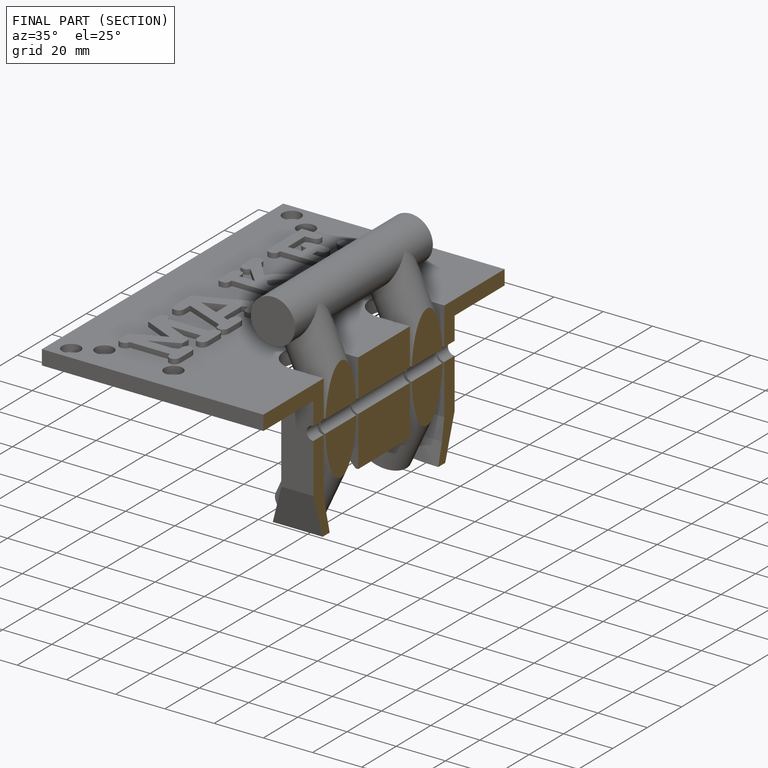
[diagram: finished part — half-section view (interior)]
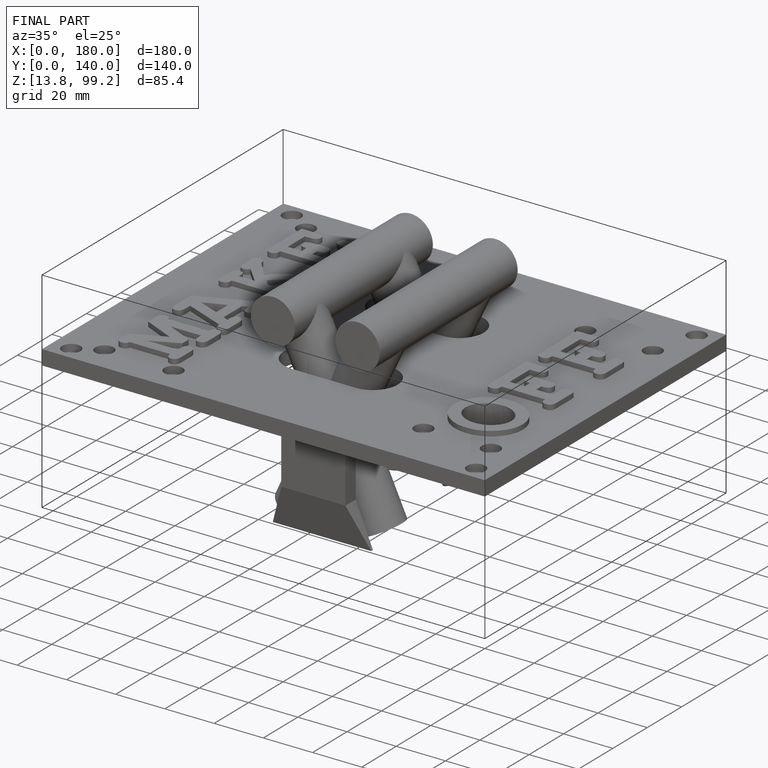
[diagram: finished part — iso view with bounding-box wireframe]
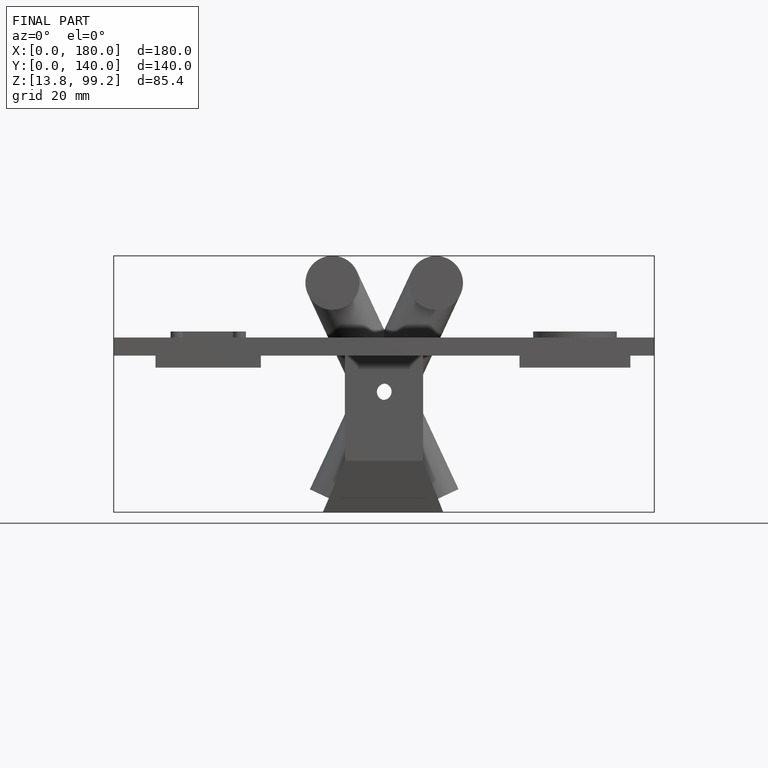
[diagram: finished part — front view with bounding-box wireframe]
